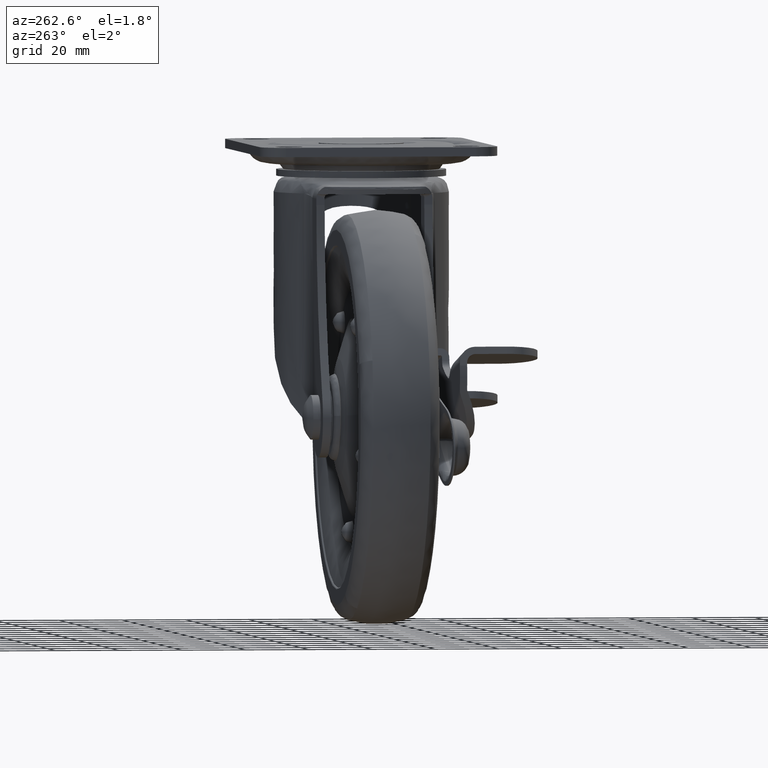
[diagram: clean part render]
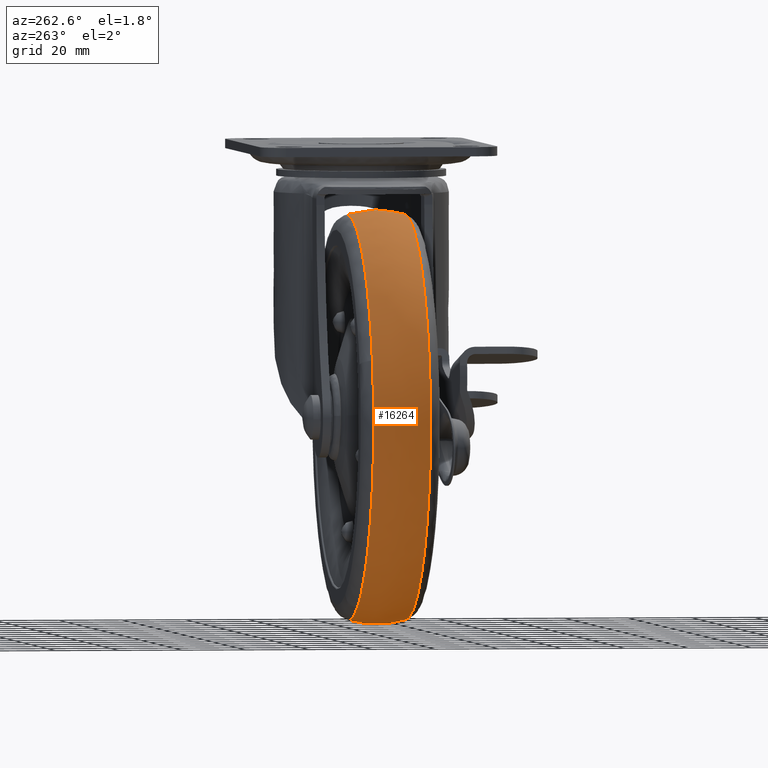
[diagram: same view with one face highlighted and labeled with its STEP entity id]
A machine part, auxiliary view. The second image highlights one B-rep face of the part: STEP entity #16264.
In plain terms, the highlighted face is a freeform B-spline surface patch.
Its self-contained STEP definition (entity closure, byte-faithful):
#14210=CARTESIAN_POINT('',(-25.784927636924198,-9.000000000029047,-26.841511112022541));
#14211=VERTEX_POINT('',#14210);
#14212=CARTESIAN_POINT('',(-0.799421879699632,-9.000027237070087,-148.613144536067610));
#14213=VERTEX_POINT('',#14212);
#14214=CARTESIAN_POINT('',(-25.784927636924195,-9.000000000029047,-26.841511112022538));
#14215=CARTESIAN_POINT('',(-63.618176034861598,-9.000001934090751,-43.615116404885470));
#14216=CARTESIAN_POINT('',(-63.618175999759949,-9.000010816811789,-84.999996598537678));
#14217=CARTESIAN_POINT('',(-63.618175946474409,-9.000024301096104,-147.823706628503340));
#14218=CARTESIAN_POINT('',(-0.799421879699632,-9.000027237070087,-148.613144536067610));
#14226=(BOUNDED_CURVE()B_SPLINE_CURVE(2,(#14214,#14215,#14216,#14217,#14218),.UNSPECIFIED.,.F.,.U.)B_SPLINE_CURVE_WITH_KNOTS((3,2,3),(0.568824898122249,0.750000000000000,0.997784314030412),.UNSPECIFIED.)CURVE()GEOMETRIC_REPRESENTATION_ITEM()RATIONAL_B_SPLINE_CURVE((0.883129907828193,0.787740164968681,1.0,0.709702618768597,0.994854337323179))REPRESENTATION_ITEM(''));
#14227=EDGE_CURVE('',#14211,#14213,#14226,.T.);
#14244=CARTESIAN_POINT('',(63.463308652354833,-8.999999999957794,-89.436302274779450));
#14245=VERTEX_POINT('',#14244);
#14259=CARTESIAN_POINT('',(60.746740704392508,-9.000000000119064,-66.102756371255737));
#14260=VERTEX_POINT('',#14259);
#14261=CARTESIAN_POINT('',(63.463308652354840,-8.999999999957794,-89.436302274779450));
#14262=CARTESIAN_POINT('',(63.618176042508303,-9.000000000000002,-87.220854279241365));
#14263=CARTESIAN_POINT('',(63.618176042508303,-9.0,-85.0));
#14264=CARTESIAN_POINT('',(63.618176042508303,-9.0,-75.333220948947570));
#14265=CARTESIAN_POINT('',(60.746740704392501,-9.000000000119064,-66.102756371255737));
#14273=(BOUNDED_CURVE()B_SPLINE_CURVE(2,(#14261,#14262,#14263,#14264,#14265),.UNSPECIFIED.,.F.,.U.)B_SPLINE_CURVE_WITH_KNOTS((3,2,3),(0.237833686534942,0.250000000000000,0.300541362318957),.UNSPECIFIED.)CURVE()GEOMETRIC_REPRESENTATION_ITEM()RATIONAL_B_SPLINE_CURVE((0.972879876386660,0.985746277152503,1.0,0.940787110828735,0.905515822341927))REPRESENTATION_ITEM(''));
#14274=EDGE_CURVE('',#14245,#14260,#14273,.T.);
#14364=CARTESIAN_POINT('',(0.0,-9.0,-21.381823957491701));
#14365=VERTEX_POINT('',#14364);
#14366=CARTESIAN_POINT('',(0.0,-9.0,-21.381823957491701));
#14367=CARTESIAN_POINT('',(-13.470479476389794,-9.0,-21.381823957491704));
#14368=CARTESIAN_POINT('',(-25.784927636924188,-9.000000000029047,-26.841511112022541));
#14376=(BOUNDED_CURVE()B_SPLINE_CURVE(2,(#14366,#14367,#14368),.UNSPECIFIED.,.F.,.U.)B_SPLINE_CURVE_WITH_KNOTS((3,3),(0.500000000000000,0.568824898122248),.UNSPECIFIED.)CURVE()GEOMETRIC_REPRESENTATION_ITEM()RATIONAL_B_SPLINE_CURVE((1.0,0.919366616217867,0.883129907828194))REPRESENTATION_ITEM(''));
#14377=EDGE_CURVE('',#14365,#14211,#14376,.T.);
#14409=CARTESIAN_POINT('',(60.746740704392508,-9.000000000119064,-66.102756371255737));
#14410=CARTESIAN_POINT('',(46.834844439213946,-9.0,-21.381823957491704));
#14411=CARTESIAN_POINT('',(0.0,-9.0,-21.381823957491701));
#14419=(BOUNDED_CURVE()B_SPLINE_CURVE(2,(#14409,#14410,#14411),.UNSPECIFIED.,.F.,.U.)B_SPLINE_CURVE_WITH_KNOTS((3,3),(0.300541362318957,0.500000000000000),.UNSPECIFIED.)CURVE()GEOMETRIC_REPRESENTATION_ITEM()RATIONAL_B_SPLINE_CURVE((0.905515822341927,0.766319670357812,1.0))REPRESENTATION_ITEM(''));
#14420=EDGE_CURVE('',#14260,#14365,#14419,.T.);
#15984=CARTESIAN_POINT('',(-23.087309326104808,9.000000000242345,-144.281097080322700));
#15985=VERTEX_POINT('',#15984);
#15986=CARTESIAN_POINT('',(-0.799428537458670,8.999999999990912,-148.613153018769990));
#15987=VERTEX_POINT('',#15986);
#15988=CARTESIAN_POINT('',(-23.087309326104808,9.000000000242345,-144.281097080322670));
#15989=CARTESIAN_POINT('',(-12.336195879542675,8.999999999999998,-148.468170092978540));
#15990=CARTESIAN_POINT('',(-0.799428537458670,8.999999999990912,-148.613153018770050));
#15998=(BOUNDED_CURVE()B_SPLINE_CURVE(2,(#15988,#15989,#15990),.UNSPECIFIED.,.F.,.U.)B_SPLINE_CURVE_WITH_KNOTS((3,3),(0.938377988111779,0.997784295921716),.UNSPECIFIED.)CURVE()GEOMETRIC_REPRESENTATION_ITEM()RATIONAL_B_SPLINE_CURVE((0.891200894980128,0.926489159889025,0.994854295643985))REPRESENTATION_ITEM(''));
#15999=EDGE_CURVE('',#15985,#15987,#15998,.T.);
#16063=CARTESIAN_POINT('',(-60.504480880018427,9.000000000068940,-65.340902451732063));
#16064=VERTEX_POINT('',#16063);
#16078=CARTESIAN_POINT('',(0.0,9.0,-21.381823957491608));
#16079=VERTEX_POINT('',#16078);
#16080=CARTESIAN_POINT('',(0.0,9.0,-21.381823957491608));
#16081=CARTESIAN_POINT('',(-46.221310449010069,9.000000000000002,-21.381823957491612));
#16082=CARTESIAN_POINT('',(-60.504480880018434,9.000000000068940,-65.340902451732063));
#16090=(BOUNDED_CURVE()B_SPLINE_CURVE(2,(#16080,#16081,#16082),.UNSPECIFIED.,.F.,.U.)B_SPLINE_CURVE_WITH_KNOTS((3,3),(0.500000000000000,0.697450174526101),.UNSPECIFIED.)CURVE()GEOMETRIC_REPRESENTATION_ITEM()RATIONAL_B_SPLINE_CURVE((1.0,0.768672731311089,0.902750339224353))REPRESENTATION_ITEM(''));
#16091=EDGE_CURVE('',#16079,#16064,#16090,.T.);
#16093=CARTESIAN_POINT('',(63.463308652353412,8.999999999962746,-89.436302274778143));
#16094=VERTEX_POINT('',#16093);
#16095=CARTESIAN_POINT('',(63.463308652353412,8.999999999962746,-89.436302274778143));
#16096=CARTESIAN_POINT('',(63.618176042508395,9.0,-87.220854279240157));
#16097=CARTESIAN_POINT('',(63.618176042508402,9.0,-85.0));
#16098=CARTESIAN_POINT('',(63.618176042508402,9.000000000000002,-21.381823957491612));
#16099=CARTESIAN_POINT('',(0.0,9.0,-21.381823957491608));
#16107=(BOUNDED_CURVE()B_SPLINE_CURVE(2,(#16095,#16096,#16097,#16098,#16099),.UNSPECIFIED.,.F.,.U.)B_SPLINE_CURVE_WITH_KNOTS((3,2,3),(0.237833686534949,0.250000000000000,0.500000000000000),.UNSPECIFIED.)CURVE()GEOMETRIC_REPRESENTATION_ITEM()RATIONAL_B_SPLINE_CURVE((0.972879876386673,0.985746277152511,1.0,0.707106781186548,1.0))REPRESENTATION_ITEM(''));
#16108=EDGE_CURVE('',#16094,#16079,#16107,.T.);
#16158=CARTESIAN_POINT('',(-60.504480880018441,9.000000000068940,-65.340902451732063));
#16159=CARTESIAN_POINT('',(-63.618176042508388,9.0,-74.923870793036897));
#16160=CARTESIAN_POINT('',(-63.618176042508402,9.0,-85.0));
#16161=CARTESIAN_POINT('',(-63.618176042508395,9.000000000000002,-128.496155451056010));
#16162=CARTESIAN_POINT('',(-23.087309326104815,9.000000000242345,-144.281097080322700));
#16170=(BOUNDED_CURVE()B_SPLINE_CURVE(2,(#16158,#16159,#16160,#16161,#16162),.UNSPECIFIED.,.F.,.U.)B_SPLINE_CURVE_WITH_KNOTS((3,2,3),(0.697450174526102,0.750000000000000,0.938377988111779),.UNSPECIFIED.)CURVE()GEOMETRIC_REPRESENTATION_ITEM()RATIONAL_B_SPLINE_CURVE((0.902750339224354,0.938434049875460,1.0,0.779301458833356,0.891200894980127))REPRESENTATION_ITEM(''));
#16171=EDGE_CURVE('',#16064,#15985,#16170,.T.);
#16193=CARTESIAN_POINT('',(63.182152394600053,9.851507851034015,-89.416644986945158));
#16194=CARTESIAN_POINT('',(63.308554754631551,9.851507851034015,-87.608400675221105));
#16195=CARTESIAN_POINT('',(63.331332673567786,9.851507851034016,-85.795886892125182));
#16196=CARTESIAN_POINT('',(64.127219565692968,9.851507851034015,-22.464554218557396));
#16197=CARTESIAN_POINT('',(0.795886892125187,9.851507851034016,-21.668667326432214));
#16198=CARTESIAN_POINT('',(-62.535445781442604,9.851507851034015,-20.872780434307028));
#16199=CARTESIAN_POINT('',(-63.331332673567786,9.851507851034016,-84.204113107874804));
#16200=CARTESIAN_POINT('',(-64.127219565692982,9.851507851034015,-147.535445781442580));
#16201=CARTESIAN_POINT('',(-0.795886892125139,9.851507851034016,-148.331332673567740));
#16202=CARTESIAN_POINT('',(66.598829125175016,-0.000014298849958,-89.655482183561375));
#16203=CARTESIAN_POINT('',(66.732066896566252,-0.000014298849958,-87.749454146071315));
#16204=CARTESIAN_POINT('',(66.756076568183445,-0.000014298849958,-85.838925758663166));
#16205=CARTESIAN_POINT('',(67.595002326846583,-0.000014298849958,-19.082849190479742));
#16206=CARTESIAN_POINT('',(0.838925758663171,-0.000014298849958,-18.243923431816565));
#16207=CARTESIAN_POINT('',(-65.917150809520251,-0.000014298849958,-17.404997673153392));
#16208=CARTESIAN_POINT('',(-66.756076568183445,-0.000014298849958,-84.161074241336834));
#16209=CARTESIAN_POINT('',(-67.595002326846611,-0.000014298849958,-150.917150809520250));
#16210=CARTESIAN_POINT('',(-0.838925758663120,-0.000014298849958,-151.756076568183460));
#16211=CARTESIAN_POINT('',(63.182143545951412,-9.851533364870507,-89.416644368394827));
#16212=CARTESIAN_POINT('',(63.308545888280278,-9.851533364870507,-87.608400309915098));
#16213=CARTESIAN_POINT('',(63.331323804026482,-9.851533364870505,-85.795886780661377));
#16214=CARTESIAN_POINT('',(64.127210584687830,-9.851533364870505,-22.464562976634909));
#16215=CARTESIAN_POINT('',(0.795886780661377,-9.851533364870505,-21.668676195973532));
#16216=CARTESIAN_POINT('',(-62.535437023365091,-9.851533364870505,-20.872789415312166));
#16217=CARTESIAN_POINT('',(-63.331323804026482,-9.851533364870505,-84.204113219338623));
#16218=CARTESIAN_POINT('',(-64.127210584687859,-9.851533364870505,-147.535437023365060));
#16219=CARTESIAN_POINT('',(-0.795886780661328,-9.851533364870505,-148.331323804026450));
#16227=(BOUNDED_SURFACE()B_SPLINE_SURFACE(2,2,((#16193,#16202,#16211),(#16194,#16203,#16212),(#16195,#16204,#16213),(#16196,#16205,#16214),(#16197,#16206,#16215),(#16198,#16207,#16216),(#16199,#16208,#16217),(#16200,#16209,#16218),(#16201,#16210,#16219)),.UNSPECIFIED.,.F.,.F.,.U.)B_SPLINE_SURFACE_WITH_KNOTS((3,2,2,2,3),(3,3),(0.0,4.307816940421682,112.003343157421100,219.698869374420410,327.394395591419820),(0.0,20.264944555738101),.UNSPECIFIED.)GEOMETRIC_REPRESENTATION_ITEM()RATIONAL_B_SPLINE_SURFACE(((0.916853292030108,0.866008617040715,0.916853431440850),(0.926962968408951,0.875557654968239,0.926963109356905),(0.937951746170327,0.885937043159152,0.937951888789163),(0.663232040142802,0.626452090922195,0.663232140989547),(0.937951746170327,0.885937043159152,0.937951888789163),(0.663232040142802,0.626452090922195,0.663232140989547),(0.937951746170327,0.885937043159152,0.937951888789163),(0.663232040142802,0.626452090922195,0.663232140989547),(0.937951746170327,0.885937043159152,0.937951888789163)))REPRESENTATION_ITEM('')SURFACE());
#16228=ORIENTED_EDGE('',*,*,#14274,.F.);
#16229=CARTESIAN_POINT('',(63.463308652353419,8.999999999962746,-89.436302274778143));
#16230=CARTESIAN_POINT('',(66.286787670023983,5.446925E-012,-89.633673112394092));
#16231=CARTESIAN_POINT('',(63.463308652354833,-8.999999999957794,-89.436302274779450));
#16239=(BOUNDED_CURVE()B_SPLINE_CURVE(2,(#16229,#16230,#16231),.UNSPECIFIED.,.F.,.U.)B_SPLINE_CURVE_WITH_KNOTS((3,3),(-1.494101281922735,-0.505898718077834),.UNSPECIFIED.)CURVE()GEOMETRIC_REPRESENTATION_ITEM()RATIONAL_B_SPLINE_CURVE((0.912444941985116,0.870416999294949,0.912444941985067))REPRESENTATION_ITEM(''));
#16240=EDGE_CURVE('',#16094,#14245,#16239,.T.);
#16241=ORIENTED_EDGE('',*,*,#16240,.F.);
#16242=ORIENTED_EDGE('',*,*,#16108,.T.);
#16243=ORIENTED_EDGE('',*,*,#16091,.T.);
#16244=ORIENTED_EDGE('',*,*,#16171,.T.);
#16245=ORIENTED_EDGE('',*,*,#15999,.T.);
#16246=CARTESIAN_POINT('',(-0.799428537458670,8.999999999990912,-148.613153018770020));
#16247=CARTESIAN_POINT('',(-0.834991852020212,-0.000014965433261,-151.443303351058550));
#16248=CARTESIAN_POINT('',(-0.799421879699632,-9.000027237070087,-148.613144536067520));
#16256=(BOUNDED_CURVE()B_SPLINE_CURVE(2,(#16246,#16247,#16248),.UNSPECIFIED.,.F.,.U.)B_SPLINE_CURVE_WITH_KNOTS((3,3),(-1.494101281925977,-0.505897150552117),.UNSPECIFIED.)CURVE()GEOMETRIC_REPRESENTATION_ITEM()RATIONAL_B_SPLINE_CURVE((0.933441971641689,0.890446820796787,0.933442108042551))REPRESENTATION_ITEM(''));
#16257=EDGE_CURVE('',#15987,#14213,#16256,.T.);
#16258=ORIENTED_EDGE('',*,*,#16257,.T.);
#16259=ORIENTED_EDGE('',*,*,#14227,.F.);
#16260=ORIENTED_EDGE('',*,*,#14377,.F.);
#16261=ORIENTED_EDGE('',*,*,#14420,.F.);
#16262=EDGE_LOOP('',(#16228,#16241,#16242,#16243,#16244,#16245,#16258,#16259,#16260,#16261));
#16263=FACE_OUTER_BOUND('',#16262,.T.);
#16264=ADVANCED_FACE('',(#16263),#16227,.T.);